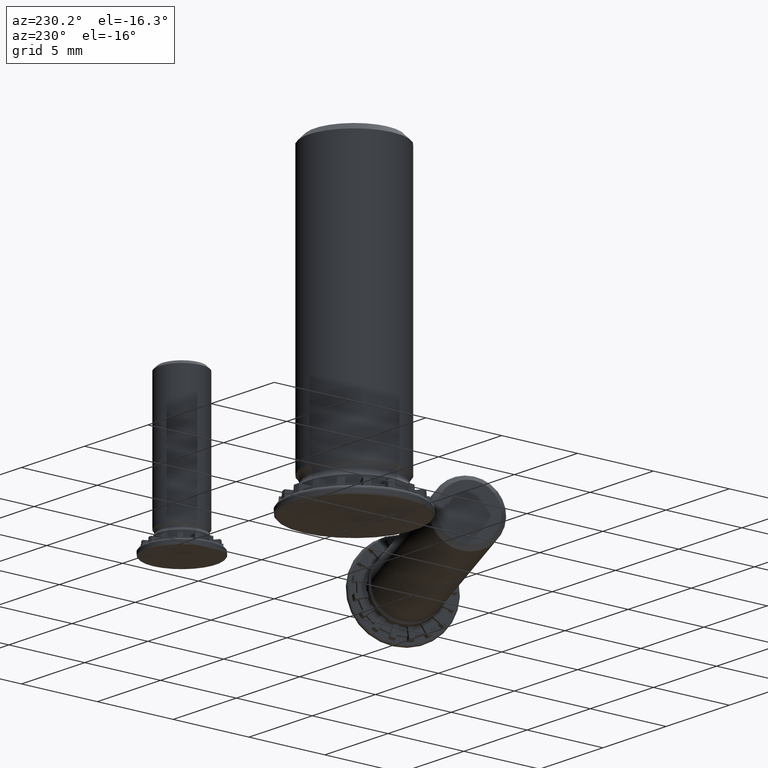
[diagram: clean part render]
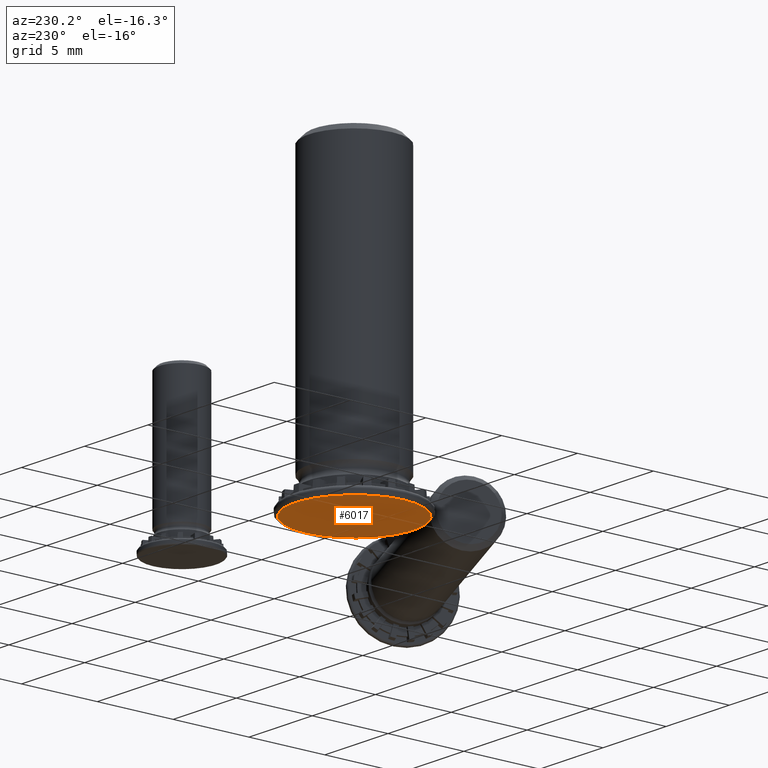
[diagram: same view with one face highlighted and labeled with its STEP entity id]
A machine part, auxiliary view. The second image highlights one B-rep face of the part: STEP entity #6017.
In plain terms, the highlighted planar face has unit normal (0, 0, -1).
Its self-contained STEP definition (entity closure, byte-faithful):
#447=CIRCLE('',#6871,3.9);
#828=FACE_OUTER_BOUND('',#1175,.T.);
#1175=EDGE_LOOP('',(#5400));
#2708=VERTEX_POINT('',#10971);
#3632=EDGE_CURVE('',#2708,#2708,#447,.T.);
#5400=ORIENTED_EDGE('',*,*,#3632,.T.);
#5693=PLANE('',#6870);
#6017=ADVANCED_FACE('',(#828),#5693,.T.);
#6870=AXIS2_PLACEMENT_3D('',#10970,#8872,#8873);
#6871=AXIS2_PLACEMENT_3D('',#10972,#8874,#8875);
#8872=DIRECTION('center_axis',(-3.05311331771918E-16,0.,-1.));
#8873=DIRECTION('ref_axis',(-1.,0.,3.05311331771918E-16));
#8874=DIRECTION('center_axis',(-3.05311331771918E-16,0.,-1.));
#8875=DIRECTION('ref_axis',(-1.,0.,3.05311331771918E-16));
#10970=CARTESIAN_POINT('Origin',(-1.95,0.,0.));
#10971=CARTESIAN_POINT('',(3.9,-4.77612251667468E-16,-2.36477504245158E-15));
#10972=CARTESIAN_POINT('Origin',(-3.63538536302535E-31,0.,-1.19071419391048E-15));